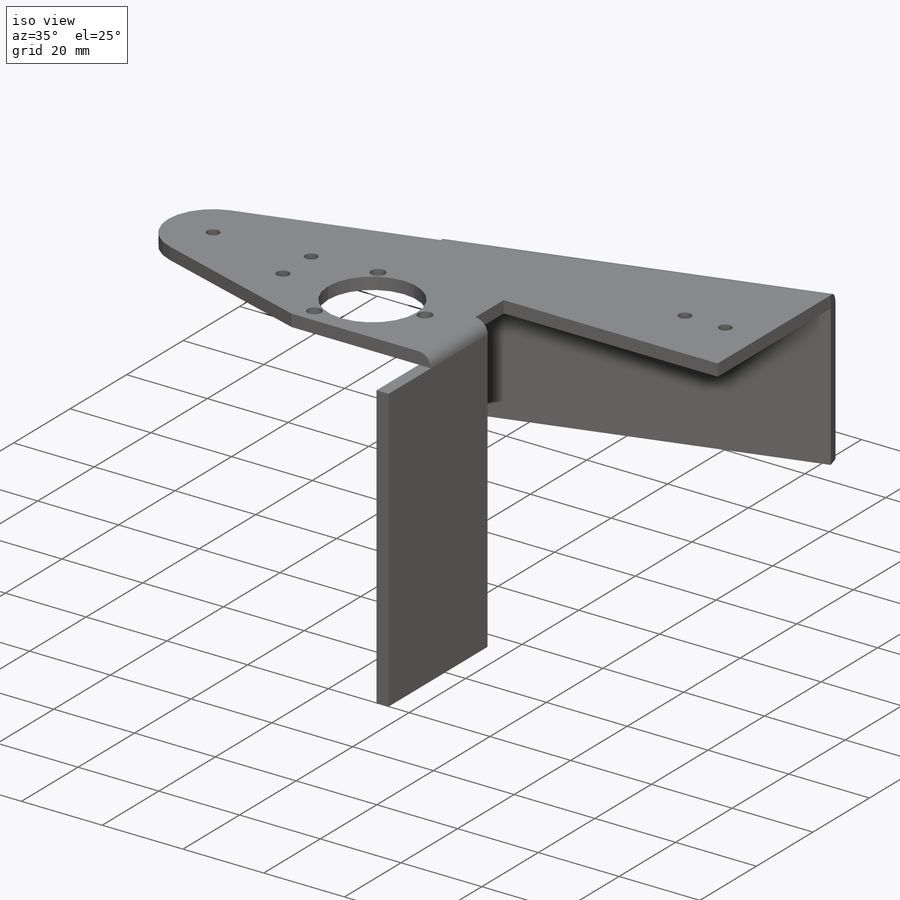
[diagram: iso view]
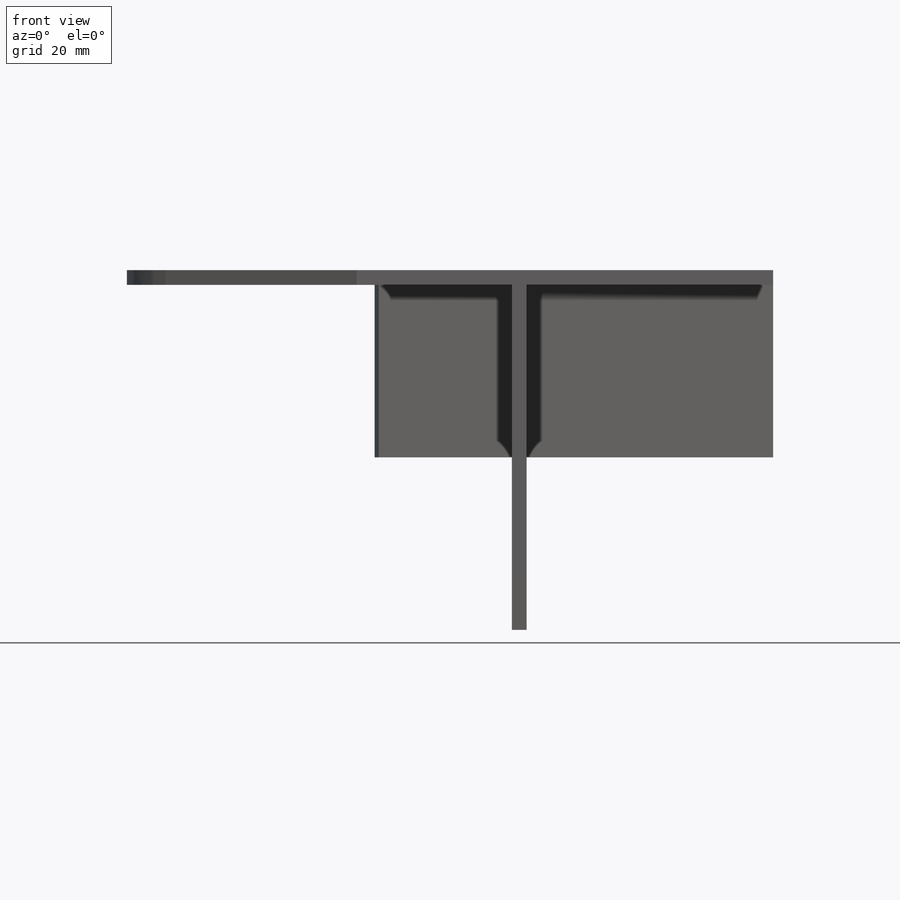
[diagram: front view]
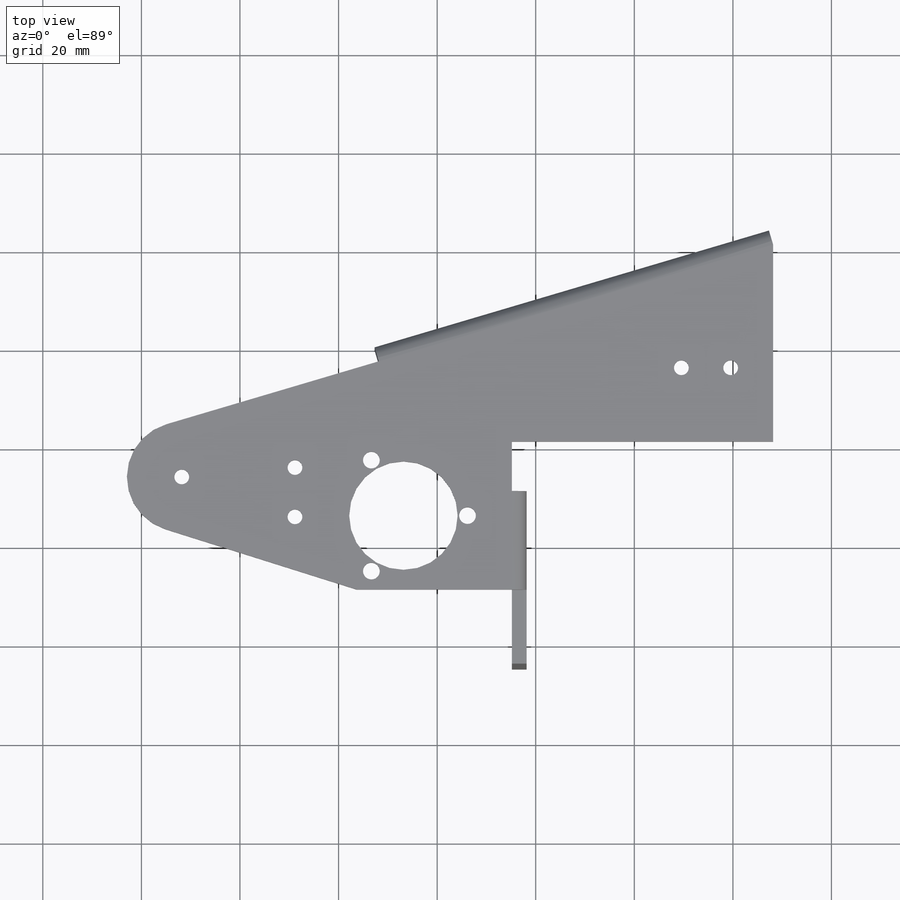
[diagram: top view]
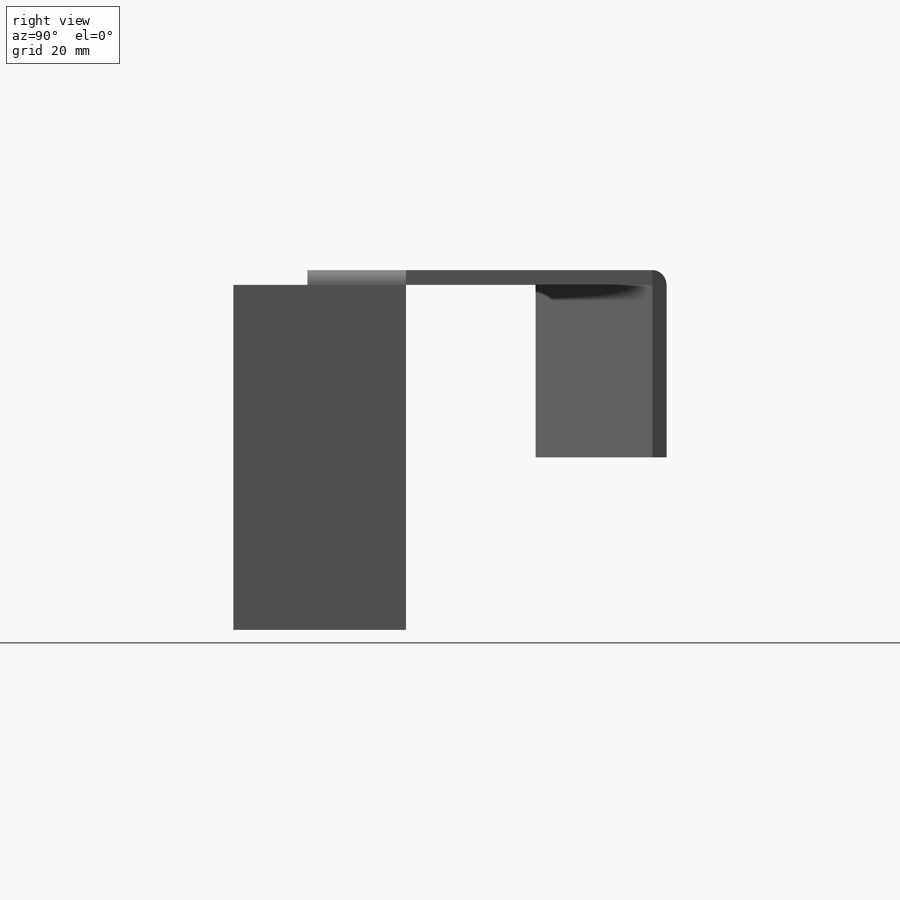
[diagram: right view]
SOLIDWORKS PART (.sldprt)
format: sldprt  version: not decoded by parser v0  size: 509,952 bytes
history: native  units: mm
features: plane x3, sketch x3, extrude x3, material x1, fillet x1 (+13 scaffold rows collapsed)
feature tree (24):
  scaffold x13  (default folders/planes/origin — collapsed)
  material  "Matériau <non spécifié>"
  plane  "Plan de face"
  plane  "Plan de dessus"
  plane  "Plan de droite"
  sketch  "Esquisse3"  dims[c1.D1=3.0mm c1.D2=3.0mm c1.D3=3.0mm c1.D7=5.0mm c1.D5=22.0mm c1.D13=3.4mm c1.D15=3.4mm c1.D17=11.13mm c1.D9=~1.967522mm c1.D20=3.0mm c1.D4=22.0mm c1.D11=3.4mm c1.D25=3.0mm c1.D32=3.0mm c2.D11=3.4mm c2.D4=5.0mm c2.D5=5.0mm c2.D6=5.0mm c3.D5=8.62mm c3.D6=~21.164028mm c4.D5=6.61mm c4.D6=~24.032439mm c5.D5=~12.886941mm c5.D6=22.97mm c5.D4=0.0mm c6.D5=45.0mm c6.D8=60.0mm c6.D9=16.59mm c6.D10=5.0mm c6.D7=3.0mm c7.D10=10.0mm c7.D5=13.0mm c7.D11=~2.21677mm c7.D12=20.0mm c8.D11=0.0mm c8.D12=17.0mm c8.D13=30.0mm c8.D14=15.0mm c8.D15=13.0mm c8.D16=13.0mm c8.D18=60.0mm c8.D8=41.79mm c9.D18=4.75mm c9.D19=22.85mm c9.D9=41.79mm c9.D8=47.04mm c10.D9=~9.440061mm c11.D9=90.0deg c12.D9=10.0mm c12.D18=60.0mm c12.D20=100.0mm c12.D21=40.0mm c13.D9=0.0mm c13.D20=~4.309398mm c14.D9=15.0mm c14.D20=0.0mm c14.D18=60.0mm c14.D21=40.0mm c14.D22=~40.787831mm c15.D21=40.0mm c15.D22=3.0mm c15.D23=~4.516436mm c16.D23=90.0deg c17.D23=3.0mm c17.D24=80.0mm c17.D18=60.0mm c17.D21=~28.629447mm c17.D25=10.0mm c17.D26=0.0mm c17.D27=~36.980787mm c17.D28=70.0mm c18.D27=16.0mm c18.D28=10.0mm c19.D27=16.6mm c19.D29=10.0mm c19.D30=15.0mm c19.D31=47.04mm c19.D8=47.04mm c19.D10=22.0mm c19.D12=3.0mm c19.D26=20.0mm c20.D31=2.0mm c20.D32=3.0mm c20.D33=30.0mm c20.D21=~28.629447mm c21.D21=90.0deg c22.D21=40.0mm c22.D8=20.0mm c22.D18=3.0mm c22.D13=10.0mm c22.D26=53.0mm c22.D31=25.0mm c22.D25=10.0mm c22.D20=~7.764058mm c23.D25=~22.51666mm c23.D20=8.6114mm c23.D33=14.7536mm c23.D7=3.0]
  extrude  "Boss.-Extru.3"  Depth=3mm
  sketch  "Esquisse6"  dims[c1.D1=3.0mm c1.D2=45.0mm c2.D1=45.0mm c2.D2=3.0mm c2.D3=10.0mm c3.D1=35.0mm c3.D4=15.0mm c3.D3=15.0mm c4.D4=0.0mm c4.D5=45.0mm]
  extrude  "Boss.-Extru.4"  Depth=70mm
  sketch  "Esquisse9"  dims[c1.D1=~5.681131mm c2.D1=90.0deg c3.D1=~5.681131mm c4.D1=90.0deg c5.D1=3.0mm]
  extrude  "Boss.-Extru.5"  Depth=35mm
  fillet  "Congé1"  Radius=3mm
decode coverage: 7 of 7 modeling features carry decoded parameters
note: ~ marks probable driven/reference dimensions
note: suppression state not decoded; provenance and decode notes live in map.json
